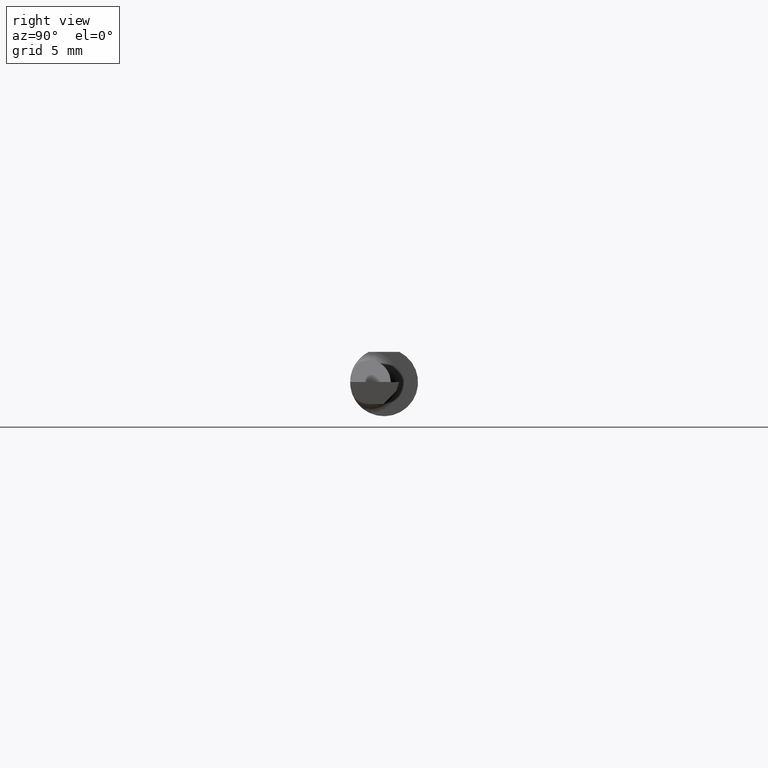
[diagram: clean part render]
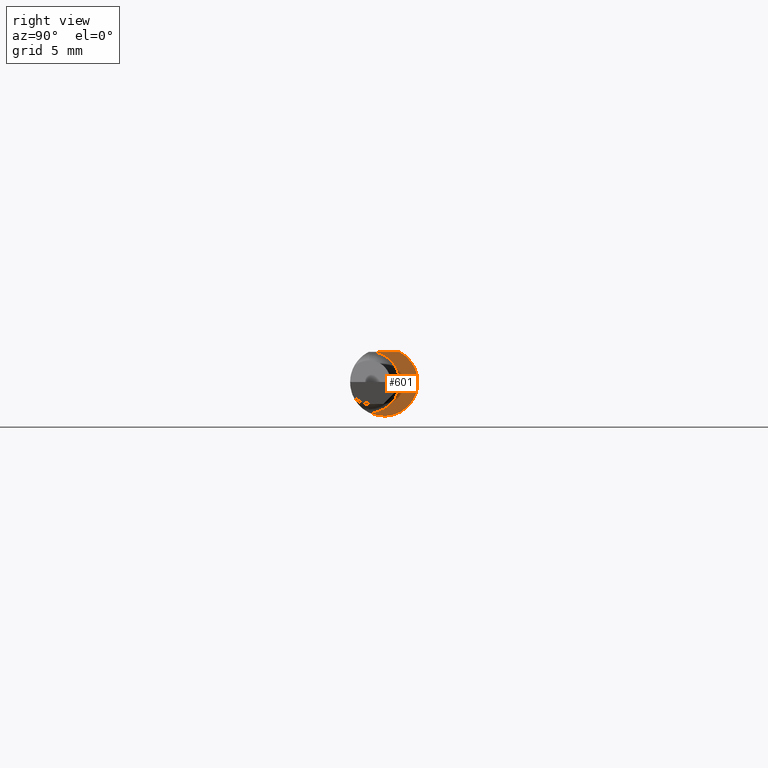
[diagram: same view with one face highlighted and labeled with its STEP entity id]
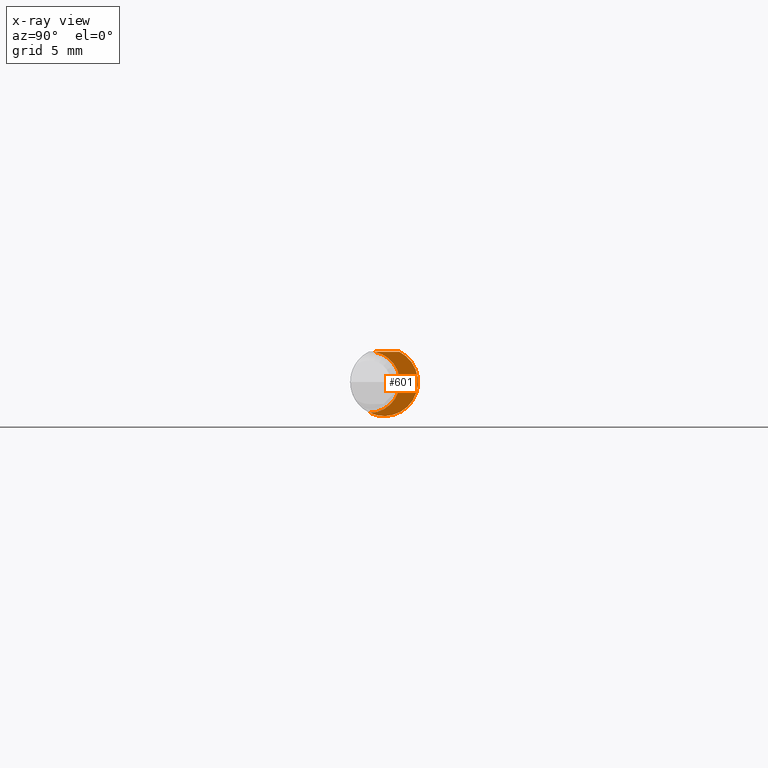
[diagram: x-ray of the same camera — body ghosted, the highlighted face saturated]
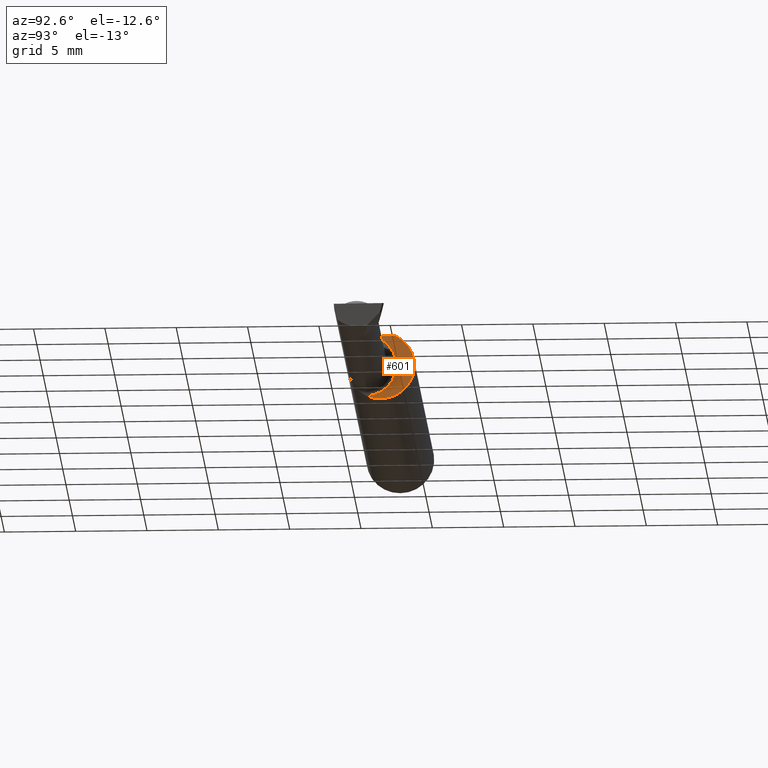
[diagram: same view with one face highlighted and labeled with its STEP entity id]
A machine part, right view. The second image highlights one B-rep face of the part: STEP entity #601.
The next image is the same camera in x-ray: the body ghosted, the highlighted face saturated — about 0% of this face is hidden behind the body in this view.
A second angle (auxiliary view) of the same face is appended — the face is thin or edge-on in the first view.
In plain terms, the highlighted planar face has unit normal (1, 0, 0).
Its self-contained STEP definition (entity closure, byte-faithful):
#11 = CARTESIAN_POINT ( 'NONE',  ( 1.209999999999999964, 0.04793338999999998545, 0.08360000000000000764 ) ) ;
#12 = ORIENTED_EDGE ( 'NONE', *, *, #163, .T. ) ;
#32 = CARTESIAN_POINT ( 'NONE',  ( 1.209999999999999964, -0.03926105769230769926, -0.08496781360539583383 ) ) ;
#46 = ORIENTED_EDGE ( 'NONE', *, *, #1175, .T. ) ;
#62 = AXIS2_PLACEMENT_3D ( 'NONE', #993, #902, #95 ) ;
#95 = DIRECTION ( 'NONE',  ( 0.000000000000000000, 0.000000000000000000, -1.000000000000000000 ) ) ;
#163 = EDGE_CURVE ( 'NONE', #681, #798, #840, .T. ) ;
#221 = CARTESIAN_POINT ( 'NONE',  ( 1.209999999999999964, 0.04209513035969836975, 0.08360000000000000764 ) ) ;
#224 = VECTOR ( 'NONE', #490, 39.37007874015748143 ) ;
#419 = CARTESIAN_POINT ( 'NONE',  ( 1.209999999999999964, -0.04160000000000000503, 0.000000000000000000 ) ) ;
#447 = FACE_OUTER_BOUND ( 'NONE', #720, .T. ) ;
#466 = EDGE_CURVE ( 'NONE', #798, #673, #1160, .T. ) ;
#490 = DIRECTION ( 'NONE',  ( 0.000000000000000000, -1.000000000000000000, 0.000000000000000000 ) ) ;
#601 = ADVANCED_FACE ( 'NONE', ( #447 ), #899, .T. ) ;
#673 = VERTEX_POINT ( 'NONE', #32 ) ;
#675 = CARTESIAN_POINT ( 'NONE',  ( 1.209999999999999964, -0.02623640667031312823, 0.08360000000000000764 ) ) ;
#681 = VERTEX_POINT ( 'NONE', #221 ) ;
#720 = EDGE_LOOP ( 'NONE', ( #12, #1044, #46 ) ) ;
#771 = AXIS2_PLACEMENT_3D ( 'NONE', #828, #1008, #803 ) ;
#773 = DIRECTION ( 'NONE',  ( -1.000000000000000000, -0.000000000000000000, -0.000000000000000000 ) ) ;
#798 = VERTEX_POINT ( 'NONE', #675 ) ;
#803 = DIRECTION ( 'NONE',  ( 0.000000000000000000, 0.000000000000000000, -1.000000000000000000 ) ) ;
#828 = CARTESIAN_POINT ( 'NONE',  ( 1.209999999999999964, 0.1184000000000000330, 0.000000000000000000 ) ) ;
#840 = LINE ( 'NONE', #11, #224 ) ;
#899 = PLANE ( 'NONE',  #771 ) ;
#902 = DIRECTION ( 'NONE',  ( 1.000000000000000000, 0.000000000000000000, 0.000000000000000000 ) ) ;
#993 = CARTESIAN_POINT ( 'NONE',  ( 1.209999999999999964, 0.000000000000000000, 0.000000000000000000 ) ) ;
#999 = CIRCLE ( 'NONE', #62, 0.09360000000000001652 ) ;
#1008 = DIRECTION ( 'NONE',  ( 1.000000000000000000, 0.000000000000000000, 0.000000000000000000 ) ) ;
#1044 = ORIENTED_EDGE ( 'NONE', *, *, #466, .T. ) ;
#1104 = AXIS2_PLACEMENT_3D ( 'NONE', #419, #773, #1145 ) ;
#1145 = DIRECTION ( 'NONE',  ( 0.000000000000000000, -9.039202920212634402E-16, -1.000000000000000000 ) ) ;
#1160 = CIRCLE ( 'NONE', #1104, 0.08500000000000001998 ) ;
#1175 = EDGE_CURVE ( 'NONE', #673, #681, #999, .T. ) ;